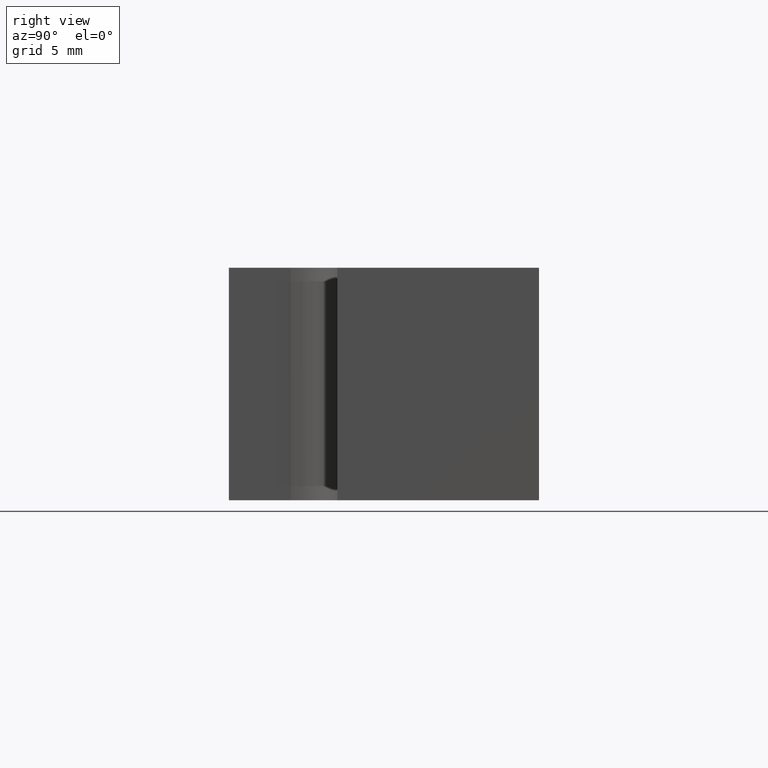
[diagram: clean part render]
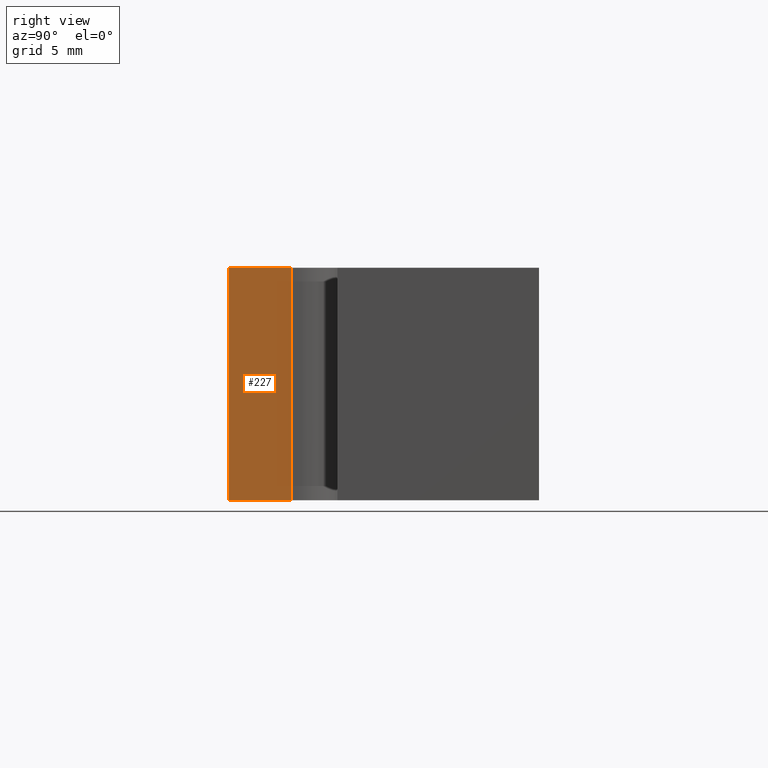
[diagram: same view with one face highlighted and labeled with its STEP entity id]
A machine part, right view. The second image highlights one B-rep face of the part: STEP entity #227.
In plain terms, the highlighted planar face has unit normal (1, 0, 0).
Its self-contained STEP definition (entity closure, byte-faithful):
#27=FACE_OUTER_BOUND('',#39,.T.);
#39=EDGE_LOOP('',(#193,#194,#195,#196));
#41=LINE('',#334,#67);
#51=LINE('',#355,#77);
#65=LINE('',#387,#91);
#66=LINE('',#389,#92);
#67=VECTOR('',#274,10.);
#77=VECTOR('',#288,10.);
#91=VECTOR('',#322,10.);
#92=VECTOR('',#325,10.);
#97=VERTEX_POINT('',#330);
#99=VERTEX_POINT('',#333);
#107=VERTEX_POINT('',#351);
#116=VERTEX_POINT('',#385);
#118=EDGE_CURVE('',#99,#97,#41,.T.);
#129=EDGE_CURVE('',#107,#99,#51,.T.);
#145=EDGE_CURVE('',#97,#116,#65,.T.);
#146=EDGE_CURVE('',#116,#107,#66,.T.);
#193=ORIENTED_EDGE('',*,*,#146,.T.);
#194=ORIENTED_EDGE('',*,*,#129,.T.);
#195=ORIENTED_EDGE('',*,*,#118,.T.);
#196=ORIENTED_EDGE('',*,*,#145,.T.);
#215=PLANE('',#266);
#227=ADVANCED_FACE('',(#27),#215,.T.);
#266=AXIS2_PLACEMENT_3D('',#388,#323,#324);
#274=DIRECTION('',(-5.55111512312578E-16,1.,0.));
#288=DIRECTION('',(0.,0.,-1.));
#322=DIRECTION('',(0.,0.,1.));
#323=DIRECTION('center_axis',(1.,5.55111512312578E-16,0.));
#324=DIRECTION('ref_axis',(0.,0.,-1.));
#325=DIRECTION('',(5.55111512312578E-16,-1.,0.));
#330=CARTESIAN_POINT('',(11.,-16.,-7.5));
#333=CARTESIAN_POINT('',(11.,-20.,-7.5));
#334=CARTESIAN_POINT('',(11.,-20.,-7.5));
#351=CARTESIAN_POINT('',(11.,-20.,7.5));
#355=CARTESIAN_POINT('',(11.,-20.,0.));
#385=CARTESIAN_POINT('',(11.,-16.,7.5));
#387=CARTESIAN_POINT('',(11.,-16.,0.));
#388=CARTESIAN_POINT('Origin',(11.,-16.,0.));
#389=CARTESIAN_POINT('',(11.,-20.,7.5));